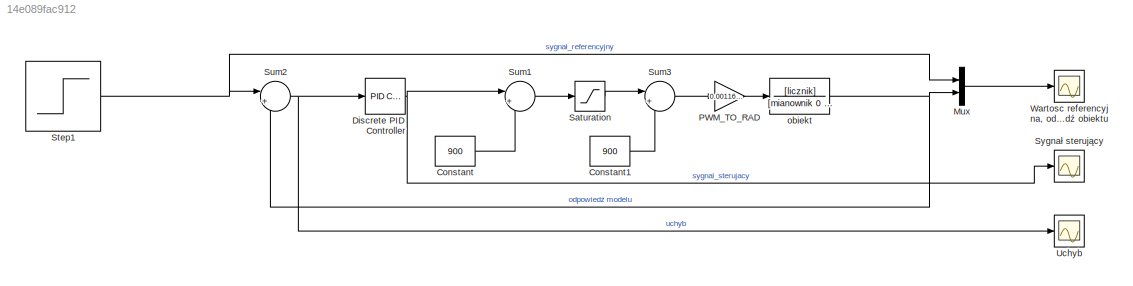
MODEL slx_14e089fac912
KIND model
CONFIG AbsTol = auto
CONFIG EnableMultiTasking = off
CONFIG FixedStep = auto
CONFIG MaxStep = auto
CONFIG MinStep = auto
CONFIG RelTol = 1e-3
CONFIG SampleTimeConstraint = Unconstrained
CONFIG SolverName = VariableStepAuto
CONFIG StartTime = 0.0
CONFIG StopTime = 30
BLOCK [Constant] Constant
  Value = 900
BLOCK [Constant] Constant1
  Value = 900
BLOCK [Reference] Discrete PID Controller  REF=slpidlib/PID Controller
  LibrarySourceBlock = simulink/Discrete/Discrete PID Controller
  SourceBlock = slpidlib/PID Controller
  SourceType = PID 1dof
BLOCK [Mux] Mux
  DisplayOption = bar
  Inputs = 2
BLOCK [Gain] PWM_TO_RAD
  Gain = 0.0011635533
BLOCK [Saturate] Saturation
  LowerLimit = 750
  UpperLimit = 1050
BLOCK [Step] Step1
  After = 0.1
  SampleTime = 0
BLOCK [Sum] Sum1
  Inputs = |++
BLOCK [Sum] Sum2
  Inputs = |+-
BLOCK [Sum] Sum3
  Inputs = |+-
BLOCK [Scope] Sygnał sterujący
  Floating = off
  NumInputPorts = 1
  ScopeSpecificationString = Simulink.scopes.TimeScopeBlockCfg('CurrentConfiguration', extmgr.ConfigurationSet(extmgr.Configuration('Core','General UI',true,'FigureColor',[1 1 1]),extmgr.Configuration('Core','Source UI',true),extmgr.Configuration('Sources','WiredSimulink',true,'DataLoggingVariableName','ScopeData2'),extmgr.Configuration('Visuals','Time Domain',true,'SerializedDisplays',{struct('MinYLimReal','-1136.54712','Max...<+1886ch>
BLOCK [Scope] Uchyb
  Floating = off
  NumInputPorts = 1
  ScopeSpecificationString = Simulink.scopes.TimeScopeBlockCfg('CurrentConfiguration', extmgr.ConfigurationSet(extmgr.Configuration('Core','General UI',true,'FigureColor',[1 1 1]),extmgr.Configuration('Core','Source UI',true),extmgr.Configuration('Sources','WiredSimulink',true,'DataLoggingVariableName','ScopeData1'),extmgr.Configuration('Visuals','Time Domain',true,'SerializedDisplays',{struct('MinYLimReal','-0.02238','MaxYLi...<+1877ch>
BLOCK [Scope] Wartosc referencyjna, odpowiedź obiektu
  Floating = off
  NumInputPorts = 1
  ScopeSpecificationString = Simulink.scopes.TimeScopeBlockCfg('CurrentConfiguration', extmgr.ConfigurationSet(extmgr.Configuration('Core','General UI',true,'FigureColor',[1 1 1]),extmgr.Configuration('Core','Source UI',true),extmgr.Configuration('Sources','WiredSimulink',true,'DataLoggingVariableName','ScopeData1'),extmgr.Configuration('Visuals','Time Domain',true,'SerializedDisplays',{struct('MinYLimReal','-0.01458','MaxYLi...<+1857ch>
BLOCK [TransferFcn] obiekt
  Denominator = [mianownik 0 0]
  Numerator = [licznik]
LINE Constant1:1 -> Sum3:2
LINE Constant:1 -> Sum1:2
NET Discrete PID Controller:1 -> Sum1:1, Sygnał sterujący:1
LINE Mux:1 -> Wartosc referencyjna, odpowiedź obiektu:1
LINE PWM_TO_RAD:1 -> obiekt:1
LINE Saturation:1 -> Sum3:1
NET Step1:1 -> Mux:1, Sum2:1
LINE Sum1:1 -> Saturation:1
NET Sum2:1 -> Discrete PID Controller:1, Uchyb:1
LINE Sum3:1 -> PWM_TO_RAD:1
NET obiekt:1 -> Mux:2, Sum2:2
note: NET lines group one-source signal fan-out (src -> all destinations, sorted); 1:1 wires keep LINE
